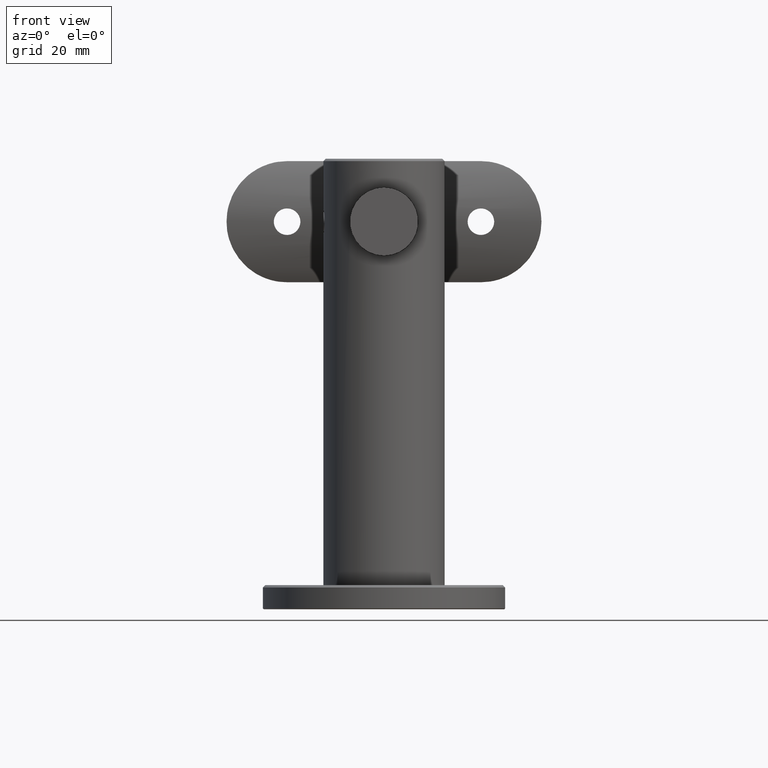
[diagram: clean part render]
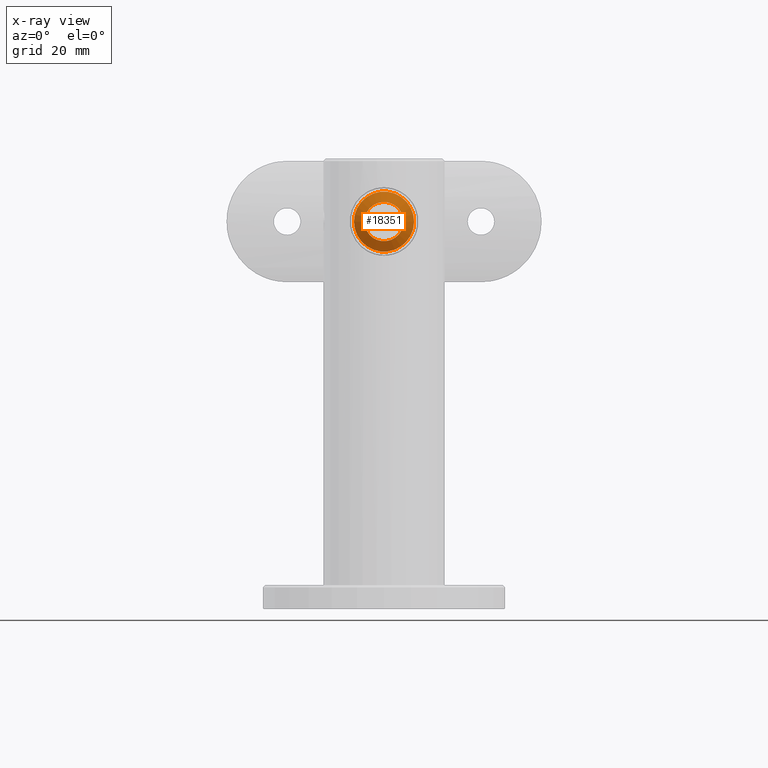
[diagram: x-ray — body ghosted, one internal face saturated and labeled with its STEP entity id]
A machine part, front view, then the same camera in x-ray: the body is ghosted and one INTERNAL B-rep face — a face not visible from any outside direction — is saturated and labeled: STEP entity #18351.
In plain terms, the highlighted conical surface has half-angle 45 deg.
Its self-contained STEP definition (entity closure, byte-faithful):
#473 = FACE_OUTER_BOUND ( 'NONE', #7676, .T. ) ;
#1178 = DIRECTION ( 'NONE',  ( 0.0000000000000000000, -1.070816960479510900E-016, 1.000000000000000000 ) ) ;
#1308 = DIRECTION ( 'NONE',  ( -0.0000000000000000000, -1.000000000000000000, -9.233143528280271600E-017 ) ) ;
#4302 = CARTESIAN_POINT ( 'NONE',  ( 0.0000000000000000000, 3.900000000000001200, -6.200000000000000200 ) ) ;
#4416 = CARTESIAN_POINT ( 'NONE',  ( 0.0000000000000000000, 1.749999999999976000, -4.847400352347164500E-016 ) ) ;
#5895 = DIRECTION ( 'NONE',  ( 0.0000000000000000000, 1.070816960479510600E-016, -1.000000000000000000 ) ) ;
#5902 = VERTEX_POINT ( 'NONE', #10063 ) ;
#7510 = VERTEX_POINT ( 'NONE', #4302 ) ;
#7676 = EDGE_LOOP ( 'NONE', ( #7769 ) ) ;
#7769 = ORIENTED_EDGE ( 'NONE', *, *, #14706, .F. ) ;
#8151 = CIRCLE ( 'NONE', #9611, 4.049999999999999800 ) ;
#9611 = AXIS2_PLACEMENT_3D ( 'NONE', #4416, #1308, #5895 ) ;
#10023 = ORIENTED_EDGE ( 'NONE', *, *, #14513, .T. ) ;
#10063 = CARTESIAN_POINT ( 'NONE',  ( 0.0000000000000000000, 1.749999999999976500, -4.050000000000000700 ) ) ;
#10628 = EDGE_LOOP ( 'NONE', ( #10023 ) ) ;
#10901 = DIRECTION ( 'NONE',  ( -0.0000000000000000000, -1.000000000000000000, -9.233143528280271600E-017 ) ) ;
#10988 = FACE_BOUND ( 'NONE', #10628, .T. ) ;
#11017 = CARTESIAN_POINT ( 'NONE',  ( 0.0000000000000000000, 3.900000000000000800, -2.862274493766883900E-016 ) ) ;
#14500 = CIRCLE ( 'NONE', #18600, 6.200000000000000200 ) ;
#14513 = EDGE_CURVE ( 'NONE', #5902, #5902, #8151, .T. ) ;
#14706 = EDGE_CURVE ( 'NONE', #7510, #7510, #14500, .T. ) ;
#15962 = AXIS2_PLACEMENT_3D ( 'NONE', #18633, #17430, #1178 ) ;
#17430 = DIRECTION ( 'NONE',  ( 0.0000000000000000000, 1.000000000000000000, 9.233143528280271600E-017 ) ) ;
#18192 = DIRECTION ( 'NONE',  ( 0.0000000000000000000, 6.994852725712931500E-017, -1.000000000000000000 ) ) ;
#18351 = ADVANCED_FACE ( 'NONE', ( #473, #10988 ), #18492, .F. ) ;
#18492 = CONICAL_SURFACE ( 'NONE', #15962, 4.049999999999998900, 0.7853981633974427300 ) ;
#18600 = AXIS2_PLACEMENT_3D ( 'NONE', #11017, #10901, #18192 ) ;
#18633 = CARTESIAN_POINT ( 'NONE',  ( 0.0000000000000000000, 1.749999999999976000, -4.847400352347164500E-016 ) ) ;